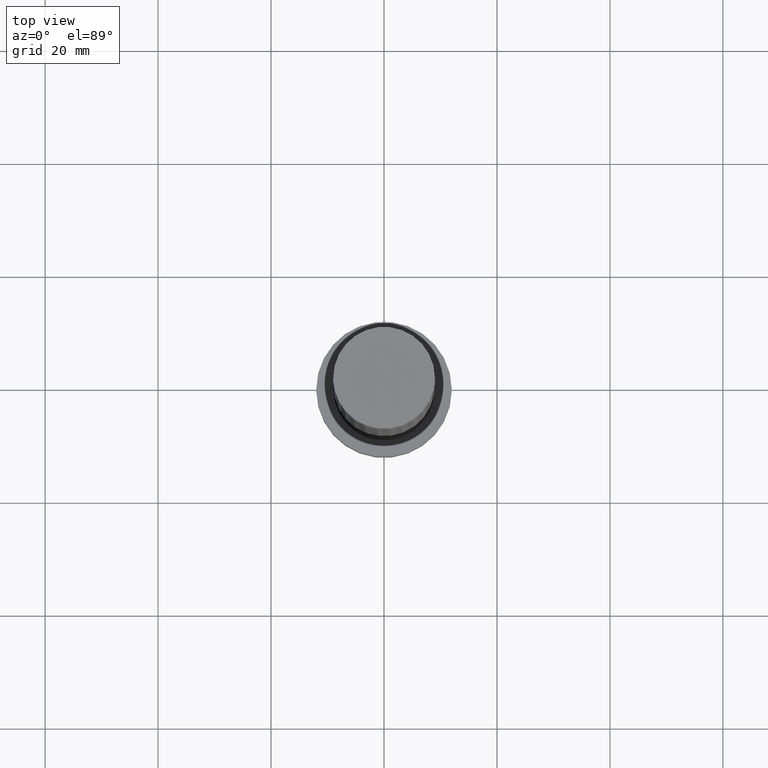
[diagram: clean part render]
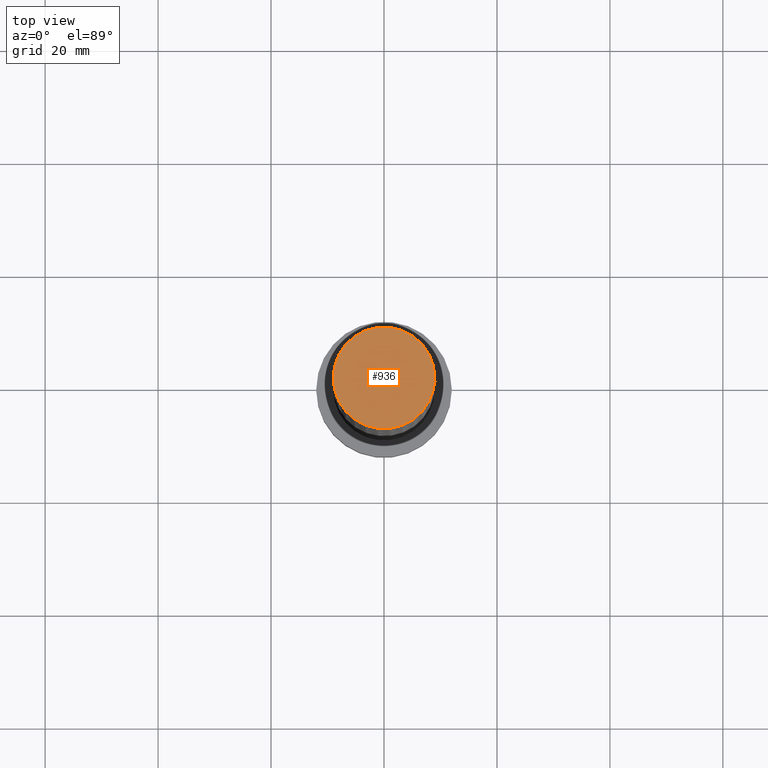
[diagram: same view with one face highlighted and labeled with its STEP entity id]
A machine part, top view. The second image highlights one B-rep face of the part: STEP entity #936.
In plain terms, the highlighted planar face has unit normal (0, 0, 1).
Its self-contained STEP definition (entity closure, byte-faithful):
#101 = VERTEX_POINT ( 'NONE', #423 ) ;
#257 = CARTESIAN_POINT ( 'NONE',  ( 9.000000000000001776, 1.102182119232617911E-15, 125.0000000000000000 ) ) ;
#280 = CARTESIAN_POINT ( 'NONE',  ( 0.000000000000000000, 0.000000000000000000, 125.0000000000000000 ) ) ;
#328 = EDGE_CURVE ( 'NONE', #101, #1453, #950, .T. ) ;
#331 = AXIS2_PLACEMENT_3D ( 'NONE', #512, #637, #609 ) ;
#423 = CARTESIAN_POINT ( 'NONE',  ( -9.000000000000001776, 0.000000000000000000, 125.0000000000000000 ) ) ;
#445 = CIRCLE ( 'NONE', #952, 9.000000000000001776 ) ;
#480 = DIRECTION ( 'NONE',  ( 0.000000000000000000, 0.000000000000000000, 1.000000000000000000 ) ) ;
#512 = CARTESIAN_POINT ( 'NONE',  ( 0.000000000000000000, 0.000000000000000000, 125.0000000000000000 ) ) ;
#514 = EDGE_LOOP ( 'NONE', ( #1243, #834 ) ) ;
#609 = DIRECTION ( 'NONE',  ( 1.000000000000000000, 0.000000000000000000, 0.000000000000000000 ) ) ;
#637 = DIRECTION ( 'NONE',  ( 0.000000000000000000, 0.000000000000000000, 1.000000000000000000 ) ) ;
#727 = EDGE_CURVE ( 'NONE', #1453, #101, #445, .T. ) ;
#824 = DIRECTION ( 'NONE',  ( 1.000000000000000000, 0.000000000000000000, 0.000000000000000000 ) ) ;
#834 = ORIENTED_EDGE ( 'NONE', *, *, #727, .T. ) ;
#936 = ADVANCED_FACE ( 'NONE', ( #1106 ), #1021, .T. ) ;
#950 = CIRCLE ( 'NONE', #331, 9.000000000000001776 ) ;
#952 = AXIS2_PLACEMENT_3D ( 'NONE', #1049, #480, #824 ) ;
#1021 = PLANE ( 'NONE',  #1030 ) ;
#1030 = AXIS2_PLACEMENT_3D ( 'NONE', #280, #1254, #1134 ) ;
#1049 = CARTESIAN_POINT ( 'NONE',  ( 0.000000000000000000, 0.000000000000000000, 125.0000000000000000 ) ) ;
#1106 = FACE_OUTER_BOUND ( 'NONE', #514, .T. ) ;
#1134 = DIRECTION ( 'NONE',  ( 1.000000000000000000, 0.000000000000000000, -0.000000000000000000 ) ) ;
#1243 = ORIENTED_EDGE ( 'NONE', *, *, #328, .T. ) ;
#1254 = DIRECTION ( 'NONE',  ( 0.000000000000000000, 0.000000000000000000, 1.000000000000000000 ) ) ;
#1453 = VERTEX_POINT ( 'NONE', #257 ) ;